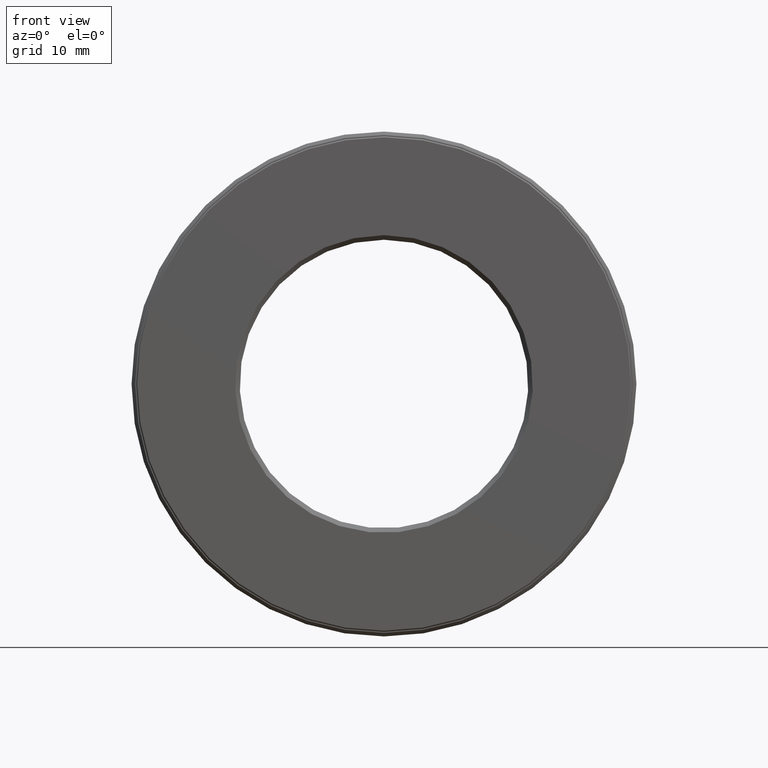
[diagram: clean part render]
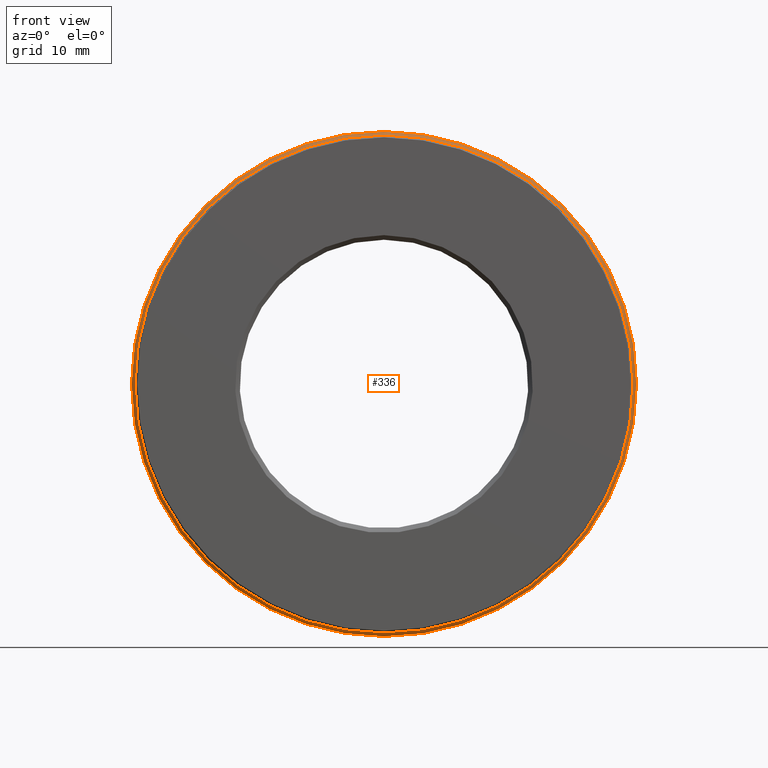
[diagram: same view with one face highlighted and labeled with its STEP entity id]
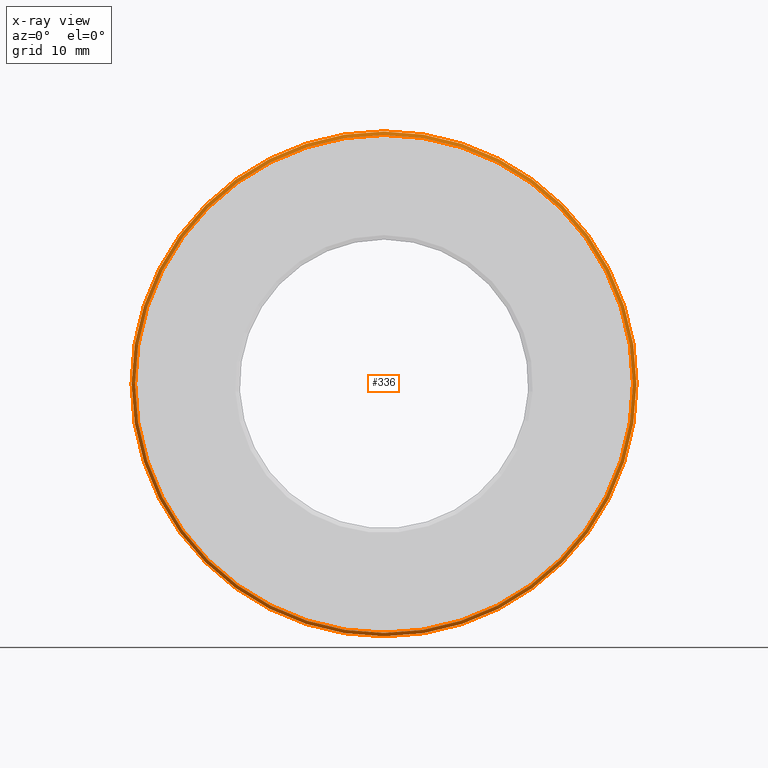
[diagram: x-ray of the same camera — body ghosted, the highlighted face saturated]
A machine part, front view. The second image highlights one B-rep face of the part: STEP entity #336.
The next image is the same camera in x-ray: the body ghosted, the highlighted face saturated — about 0% of this face is hidden behind the body in this view.
In plain terms, the highlighted conical surface has half-angle 45 deg.
Its self-contained STEP definition (entity closure, byte-faithful):
#5 = VERTEX_POINT ( 'NONE', #435 ) ;
#35 = VERTEX_POINT ( 'NONE', #238 ) ;
#75 = CIRCLE ( 'NONE', #378, 1.078750000000000100 ) ;
#85 = DIRECTION ( 'NONE',  ( -0.0000000000000000000, 1.000000000000000000, -0.0000000000000000000 ) ) ;
#102 = CONICAL_SURFACE ( 'NONE', #407, 1.078750000000000100, 0.7853981633974438400 ) ;
#131 = DIRECTION ( 'NONE',  ( -0.0000000000000000000, 1.000000000000000000, -0.0000000000000000000 ) ) ;
#157 = EDGE_CURVE ( 'NONE', #35, #35, #276, .T. ) ;
#169 = CARTESIAN_POINT ( 'NONE',  ( 0.0000000000000000000, -6.616194359655631800E-017, 0.0000000000000000000 ) ) ;
#208 = CARTESIAN_POINT ( 'NONE',  ( 0.0000000000000000000, 0.01500000000000004500, 0.0000000000000000000 ) ) ;
#225 = CARTESIAN_POINT ( 'NONE',  ( 0.0000000000000000000, -6.616194359655631800E-017, 0.0000000000000000000 ) ) ;
#230 = FACE_OUTER_BOUND ( 'NONE', #588, .T. ) ;
#238 = CARTESIAN_POINT ( 'NONE',  ( 0.0000000000000000000, 0.01500000000000004500, 1.093750000000000000 ) ) ;
#267 = AXIS2_PLACEMENT_3D ( 'NONE', #208, #131, #426 ) ;
#276 = CIRCLE ( 'NONE', #267, 1.093750000000000000 ) ;
#279 = DIRECTION ( 'NONE',  ( 0.0000000000000000000, 0.0000000000000000000, 1.000000000000000000 ) ) ;
#295 = FACE_BOUND ( 'NONE', #512, .T. ) ;
#336 = ADVANCED_FACE ( 'NONE', ( #230, #295 ), #102, .T. ) ;
#378 = AXIS2_PLACEMENT_3D ( 'NONE', #169, #518, #279 ) ;
#407 = AXIS2_PLACEMENT_3D ( 'NONE', #225, #85, #598 ) ;
#424 = EDGE_CURVE ( 'NONE', #5, #5, #75, .T. ) ;
#426 = DIRECTION ( 'NONE',  ( 0.0000000000000000000, 0.0000000000000000000, 1.000000000000000000 ) ) ;
#435 = CARTESIAN_POINT ( 'NONE',  ( 0.0000000000000000000, -6.616194359655631800E-017, 1.078750000000000100 ) ) ;
#512 = EDGE_LOOP ( 'NONE', ( #531 ) ) ;
#518 = DIRECTION ( 'NONE',  ( -0.0000000000000000000, 1.000000000000000000, -0.0000000000000000000 ) ) ;
#531 = ORIENTED_EDGE ( 'NONE', *, *, #424, .T. ) ;
#532 = ORIENTED_EDGE ( 'NONE', *, *, #157, .F. ) ;
#588 = EDGE_LOOP ( 'NONE', ( #532 ) ) ;
#598 = DIRECTION ( 'NONE',  ( 0.0000000000000000000, 0.0000000000000000000, 1.000000000000000000 ) ) ;